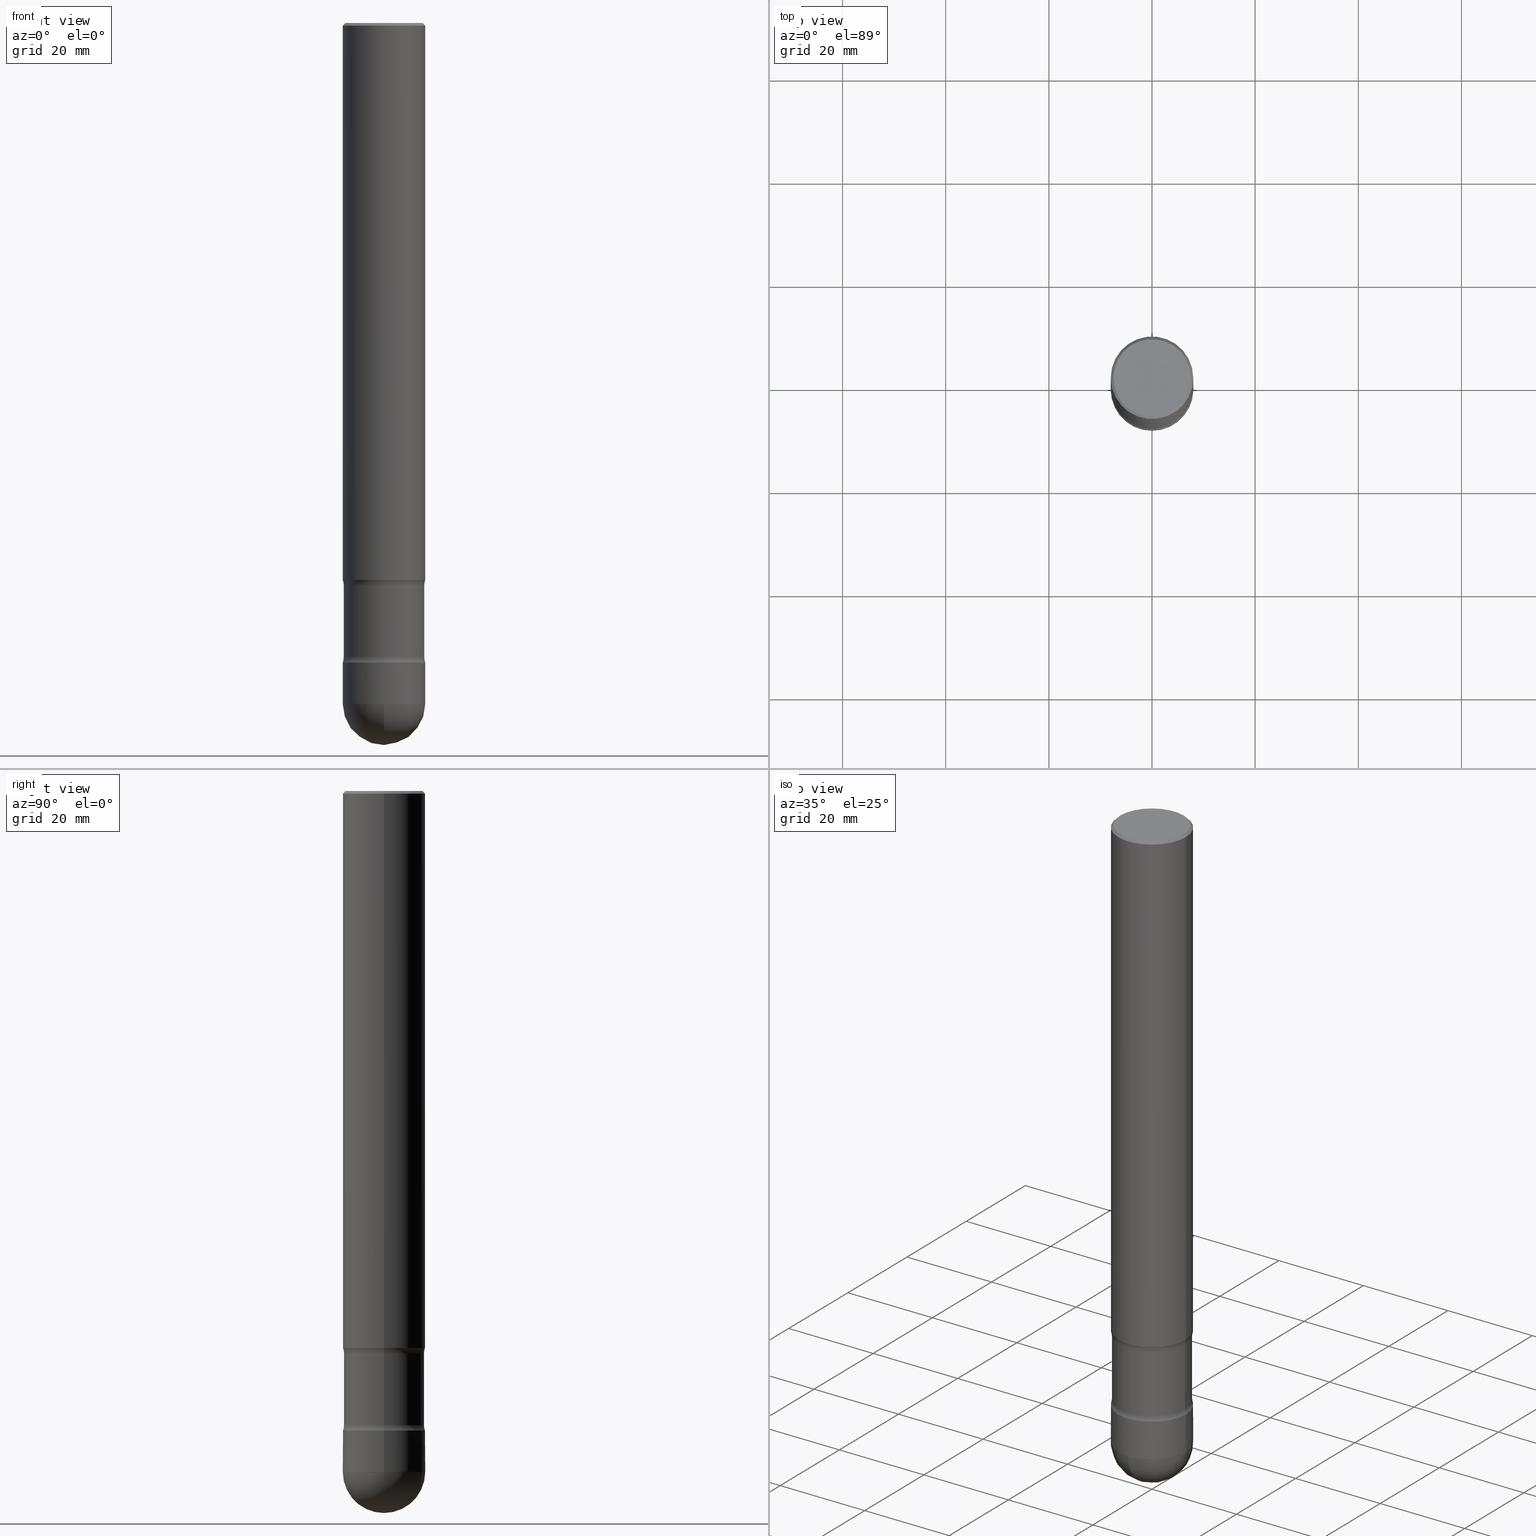
[diagram: canonical four-view strip — front | top / right | iso, engineering-drawing reading convention]
A machine part, canonical four-view strip (front | top / right | iso — engineering-drawing reading convention). The complete STEP part file that produces these views, byte-faithful:
ISO-10303-21;
HEADER;
FILE_DESCRIPTION (( 'STEP AP203' ),
    '1' );
FILE_NAME ('91360.STEP',
    '2024-02-29T19:27:36',
    ( '' ),
    ( '' ),
    'SwSTEP 2.0',
    'SolidWorks 2023',
    '' );
FILE_SCHEMA (( 'CONFIG_CONTROL_DESIGN' ));
ENDSEC;

DATA;
#1 = TOROIDAL_SURFACE ( 'NONE', #277, 0.4325000000000025491, 0.1250000000000033584 ) ;
#2 = AXIS2_PLACEMENT_3D ( 'NONE', #226, #363, #399 ) ;
#3 = DIRECTION ( 'NONE',  ( -1.000000000000000000, 6.982962677686265922E-15, 0.000000000000000000 ) ) ;
#4 = ORIENTED_EDGE ( 'NONE', *, *, #110, .F. ) ;
#5 = ADVANCED_FACE ( 'NONE', ( #369 ), #554, .T. ) ;
#6 = DIRECTION ( 'NONE',  ( -1.000000000000000000, 6.982962677686267499E-15, -4.883557194083112901E-29 ) ) ;
#7 = DIRECTION ( 'NONE',  ( 1.000000000000000000, -6.982962677686271444E-15, 0.000000000000000000 ) ) ;
#8 = FACE_OUTER_BOUND ( 'NONE', #40, .T. ) ;
#9 = AXIS2_PLACEMENT_3D ( 'NONE', #184, #450, #49 ) ;
#10 = CIRCLE ( 'NONE', #543, 0.3149499999999991195 ) ;
#11 = DIRECTION ( 'NONE',  ( 2.445468806185136597E-29, -3.491481338843145583E-15, -1.000000000000000000 ) ) ;
#12 = ORIENTED_EDGE ( 'NONE', *, *, #290, .F. ) ;
#13 = EDGE_CURVE ( 'NONE', #127, #541, #102, .T. ) ;
#14 = DIRECTION ( 'NONE',  ( -1.000000000000000000, 6.982962677686269077E-15, 0.000000000000000000 ) ) ;
#15 = DIRECTION ( 'NONE',  ( 2.445468806185136597E-29, -3.491481338843145583E-15, -1.000000000000000000 ) ) ;
#16 = DATE_TIME_ROLE ( 'classification_date' ) ;
#17 = DIRECTION ( 'NONE',  ( -1.000000000000000000, 6.982962677686267499E-15, 0.000000000000000000 ) ) ;
#18 = LOCAL_TIME ( 14, 27, 36.00000000000000000, #503 ) ;
#19 = CALENDAR_DATE ( 2024, 29, 2 ) ;
#20 = ORIENTED_EDGE ( 'NONE', *, *, #110, .T. ) ;
#21 = ORIENTED_EDGE ( 'NONE', *, *, #13, .F. ) ;
#22 = DIRECTION ( 'NONE',  ( -1.000000000000000000, 6.982962677686263555E-15, 0.000000000000000000 ) ) ;
#23 = EDGE_CURVE ( 'NONE', #342, #513, #372, .T. ) ;
#24 = APPLICATION_PROTOCOL_DEFINITION ( 'international standard', 'config_control_design', 1994, #343 ) ;
#25 = DIRECTION ( 'NONE',  ( -2.445468806185136597E-29, 3.491481338843145583E-15, 1.000000000000000000 ) ) ;
#26 = ORIENTED_EDGE ( 'NONE', *, *, #507, .T. ) ;
#27 =( LENGTH_UNIT ( ) NAMED_UNIT ( * ) SI_UNIT ( $, .METRE. ) );
#28 = CARTESIAN_POINT ( 'NONE',  ( -0.3148176858282792367, -1.484541882947591943E-14, -4.881532314171719733 ) ) ;
#29 = PRODUCT_RELATED_PRODUCT_CATEGORY ( 'detail', '', ( #392 ) ) ;
#30 = AXIS2_PLACEMENT_3D ( 'NONE', #95, #272, #445 ) ;
#31 = CIRCLE ( 'NONE', #222, 0.3144499999999991746 ) ;
#32 = APPROVAL_DATE_TIME ( #424, #261 ) ;
#33 = ORIENTED_EDGE ( 'NONE', *, *, #414, .T. ) ;
#34 = AXIS2_PLACEMENT_3D ( 'NONE', #510, #159, #111 ) ;
#35 = ADVANCED_FACE ( 'NONE', ( #500 ), #109, .T. ) ;
#36 = FACE_OUTER_BOUND ( 'NONE', #501, .T. ) ;
#37 = ORIENTED_EDGE ( 'NONE', *, *, #99, .T. ) ;
#38 = FACE_OUTER_BOUND ( 'NONE', #253, .T. ) ;
#39 = APPROVAL_DATE_TIME ( #348, #337 ) ;
#40 = EDGE_LOOP ( 'NONE', ( #256, #520, #301, #263 ) ) ;
#41 = DIRECTION ( 'NONE',  ( -2.445468806185136597E-29, 3.491481338843145583E-15, 1.000000000000000000 ) ) ;
#42 = ADVANCED_FACE ( 'NONE', ( #84 ), #443, .T. ) ;
#43 = AXIS2_PLACEMENT_3D ( 'NONE', #400, #54, #55 ) ;
#44 = ORIENTED_EDGE ( 'NONE', *, *, #73, .T. ) ;
#45 = EDGE_LOOP ( 'NONE', ( #478, #46, #173, #88 ) ) ;
#46 = ORIENTED_EDGE ( 'NONE', *, *, #176, .T. ) ;
#47 = VERTEX_POINT ( 'NONE', #526 ) ;
#48 = CARTESIAN_POINT ( 'NONE',  ( 1.193853416491521798E-28, -1.704506274809835102E-14, -4.881899999999999906 ) ) ;
#49 = DIRECTION ( 'NONE',  ( -1.000000000000000000, 6.982962677686268288E-15, 0.000000000000000000 ) ) ;
#50 = VECTOR ( 'NONE', #412, 39.37007874015748143 ) ;
#51 = CC_DESIGN_SECURITY_CLASSIFICATION ( #449, ( #87 ) ) ;
#52 = ADVANCED_FACE ( 'NONE', ( #314 ), #486, .T. ) ;
#53 = AXIS2_PLACEMENT_3D ( 'NONE', #494, #103, #278 ) ;
#54 = DIRECTION ( 'NONE',  ( 1.000000000000000000, -6.982962677686265922E-15, 4.883557194083112340E-29 ) ) ;
#55 = DIRECTION ( 'NONE',  ( 6.982962677686266711E-15, 1.000000000000000000, 0.000000000000000000 ) ) ;
#56 = SPHERICAL_SURFACE ( 'NONE', #397, 0.3149499999999997302 ) ;
#57 = CC_DESIGN_PERSON_AND_ORGANIZATION_ASSIGNMENT ( #556, #508, ( #87 ) ) ;
#58 = CARTESIAN_POINT ( 'NONE',  ( 0.3149499999999991195, -1.979416786726996296E-14, -5.196850000000000414 ) ) ;
#59 = ORIENTED_EDGE ( 'NONE', *, *, #68, .T. ) ;
#60 = DIRECTION ( 'NONE',  ( 2.445468806185136597E-29, -3.491481338843145583E-15, -1.000000000000000000 ) ) ;
#61 = ORGANIZATION ( 'UNSPECIFIED', 'UNSPECIFIED', '' ) ;
#62 = CONICAL_SURFACE ( 'NONE', #448, 0.3144499999999991746, 0.7853981633980054999 ) ;
#63 = CARTESIAN_POINT ( 'NONE',  ( 1.193853416491521798E-28, -1.704506274809835102E-14, -4.881899999999999906 ) ) ;
#64 = CARTESIAN_POINT ( 'NONE',  ( 1.276832682828469266E-28, -1.805936528356841694E-14, -5.196849999999999525 ) ) ;
#65 = CARTESIAN_POINT ( 'NONE',  ( -0.3149499999999991195, 2.237854346276429279E-15, -1.549218606675778192E-29 ) ) ;
#66 = CYLINDRICAL_SURFACE ( 'NONE', #353, 0.3074999999999992739 ) ;
#67 = CIRCLE ( 'NONE', #216, 0.2949499999999996014 ) ;
#68 = EDGE_CURVE ( 'NONE', #489, #522, #134, .T. ) ;
#69 = CARTESIAN_POINT ( 'NONE',  ( -0.4324999999999875056, -1.197406595288428538E-14, -4.294508793207993946 ) ) ;
#70 = LINE ( 'NONE', #420, #298 ) ;
#71 = CALENDAR_DATE ( 2024, 29, 2 ) ;
#72 = CYLINDRICAL_SURFACE ( 'NONE', #156, 0.3149499999999997857 ) ;
#73 = EDGE_CURVE ( 'NONE', #183, #265, #427, .T. ) ;
#74 = LINE ( 'NONE', #193, #471 ) ;
#75 = CIRCLE ( 'NONE', #155, 0.3149499999999997302 ) ;
#76 = LINE ( 'NONE', #126, #288 ) ;
#77 = CC_DESIGN_APPROVAL ( #329, ( #205 ) ) ;
#78 = DIRECTION ( 'NONE',  ( 1.000000000000000000, -6.982962677686266711E-15, 4.876176775795935793E-29 ) ) ;
#79 = VERTEX_POINT ( 'NONE', #530 ) ;
#80 = VECTOR ( 'NONE', #466, 39.37007874015748143 ) ;
#81 = DIRECTION ( 'NONE',  ( 2.445468806185136877E-29, -3.491481338843145188E-15, -1.000000000000000000 ) ) ;
#82 = CARTESIAN_POINT ( 'NONE',  ( 1.193853416491521798E-28, -1.704506274809835102E-14, -4.881899999999999906 ) ) ;
#83 = ORIENTED_EDGE ( 'NONE', *, *, #214, .F. ) ;
#84 = FACE_OUTER_BOUND ( 'NONE', #45, .T. ) ;
#85 = EDGE_LOOP ( 'NONE', ( #20, #125, #493, #282, #203 ) ) ;
#86 = ADVANCED_FACE ( 'NONE', ( #136 ), #189, .F. ) ;
#87 = PRODUCT_DEFINITION_FORMATION_WITH_SPECIFIED_SOURCE ( 'ANY', '', #392, .NOT_KNOWN. ) ;
#88 = ORIENTED_EDGE ( 'NONE', *, *, #455, .F. ) ;
#89 = AXIS2_PLACEMENT_3D ( 'NONE', #483, #355, #367 ) ;
#90 = ORIENTED_EDGE ( 'NONE', *, *, #176, .F. ) ;
#91 = EDGE_CURVE ( 'NONE', #274, #436, #209, .T. ) ;
#92 = FACE_OUTER_BOUND ( 'NONE', #422, .T. ) ;
#93 = CARTESIAN_POINT ( 'NONE',  ( 4.890937612370220610E-31, -6.982962677686216421E-17, -0.01999999999999978531 ) ) ;
#94 = CC_DESIGN_APPROVAL ( #337, ( #449 ) ) ;
#95 = CARTESIAN_POINT ( 'NONE',  ( 1.050208729167792447E-28, -1.499419731098350864E-14, -4.294508793207993946 ) ) ;
#96 = ORIENTED_EDGE ( 'NONE', *, *, #391, .F. ) ;
#97 = DIRECTION ( 'NONE',  ( -1.000000000000000000, 6.982962677686266711E-15, -4.883557194083112901E-29 ) ) ;
#98 = CARTESIAN_POINT ( 'NONE',  ( 1.193763500069168247E-28, -1.704377897989035506E-14, -4.881532314171719733 ) ) ;
#99 = EDGE_CURVE ( 'NONE', #79, #452, #425, .T. ) ;
#100 = FACE_OUTER_BOUND ( 'NONE', #114, .T. ) ;
#101 = DIRECTION ( 'NONE',  ( -1.000000000000000000, 6.982962677686267499E-15, -4.883557194083112901E-29 ) ) ;
#102 = CIRCLE ( 'NONE', #435, 0.3149499999999996191 ) ;
#103 = DIRECTION ( 'NONE',  ( 2.445468806185136597E-29, -3.491481338843145583E-15, -1.000000000000000000 ) ) ;
#104 = CIRCLE ( 'NONE', #396, 0.3144499999999991746 ) ;
#105 = PERSON_AND_ORGANIZATION ( #352, #61 ) ;
#106 = ORIENTED_EDGE ( 'NONE', *, *, #68, .F. ) ;
#107 = DIRECTION ( 'NONE',  ( 1.000000000000000000, -6.982962677686271444E-15, 0.000000000000000000 ) ) ;
#108 = APPROVAL_STATUS ( 'not_yet_approved' ) ;
#109 = CYLINDRICAL_SURFACE ( 'NONE', #405, 0.3149499999999991195 ) ;
#110 = EDGE_CURVE ( 'NONE', #130, #199, #249, .T. ) ;
#111 = DIRECTION ( 'NONE',  ( 1.000000000000000000, -6.982962677686265133E-15, 0.000000000000000000 ) ) ;
#112 = EDGE_LOOP ( 'NONE', ( #360, #370, #481, #4 ) ) ;
#113 = PERSON_AND_ORGANIZATION ( #352, #61 ) ;
#114 = EDGE_LOOP ( 'NONE', ( #59, #528, #147, #326 ) ) ;
#115 = CARTESIAN_POINT ( 'NONE',  ( -0.3149499999999996191, 2.129454468560424601E-15, -0.01999999999999978531 ) ) ;
#116 = AXIS2_PLACEMENT_3D ( 'NONE', #225, #536, #3 ) ;
#117 = CIRCLE ( 'NONE', #262, 0.3074999999999993294 ) ;
#118 = CALENDAR_DATE ( 2024, 29, 2 ) ;
#119 = CARTESIAN_POINT ( 'NONE',  ( 1.193853416491521798E-28, -1.704506274809835102E-14, -4.881899999999999906 ) ) ;
#120 = ADVANCED_FACE ( 'NONE', ( #92 ), #56, .T. ) ;
#121 = CALENDAR_DATE ( 2024, 29, 2 ) ;
#122 = DIRECTION ( 'NONE',  ( 1.000000000000000000, -6.982962677686270655E-15, 0.000000000000000000 ) ) ;
#123 = EDGE_LOOP ( 'NONE', ( #561, #270, #83, #419 ) ) ;
#124 = DIRECTION ( 'NONE',  ( -2.438088387897960049E-29, 3.491481338843145188E-15, 1.000000000000000000 ) ) ;
#125 = ORIENTED_EDGE ( 'NONE', *, *, #275, .T. ) ;
#126 = CARTESIAN_POINT ( 'NONE',  ( 0.3074999999999992739, -1.915466588241308928E-14, -4.881899999999999906 ) ) ;
#127 = VERTEX_POINT ( 'NONE', #359 ) ;
#128 = ADVANCED_FACE ( 'NONE', ( #403 ), #221, .F. ) ;
#129 = CARTESIAN_POINT ( 'NONE',  ( 0.000000000000000000, 0.000000000000000000, 0.000000000000000000 ) ) ;
#130 = VERTEX_POINT ( 'NONE', #317 ) ;
#131 = VERTEX_POINT ( 'NONE', #320 ) ;
#132 = VECTOR ( 'NONE', #154, 39.37007874015748143 ) ;
#133 = LOCAL_TIME ( 14, 27, 36.00000000000000000, #410 ) ;
#134 = CIRCLE ( 'NONE', #252, 0.2949499999999996014 ) ;
#135 = EDGE_CURVE ( 'NONE', #513, #436, #224, .T. ) ;
#136 = FACE_OUTER_BOUND ( 'NONE', #564, .T. ) ;
#137 = CARTESIAN_POINT ( 'NONE',  ( -0.3149500000000000077, -1.264649455742376812E-14, -4.252000000000000668 ) ) ;
#138 = DIRECTION ( 'NONE',  ( -1.000000000000000000, 6.982962677686264344E-15, 0.000000000000000000 ) ) ;
#139 = AXIS2_PLACEMENT_3D ( 'NONE', #398, #276, #319 ) ;
#140 = EDGE_CURVE ( 'NONE', #47, #516, #165, .T. ) ;
#141 = DIRECTION ( 'NONE',  ( 1.000000000000000000, -6.982962677686266711E-15, 4.876176775795935793E-29 ) ) ;
#142 = CARTESIAN_POINT ( 'NONE',  ( -0.2949499999999996014, 2.059624841783561697E-15, -1.438228340021009396E-29 ) ) ;
#143 = EDGE_LOOP ( 'NONE', ( #532, #504, #366, #306 ) ) ;
#144 = CARTESIAN_POINT ( 'NONE',  ( 0.000000000000000000, 0.000000000000000000, 0.000000000000000000 ) ) ;
#145 = ORIENTED_EDGE ( 'NONE', *, *, #23, .F. ) ;
#146 = DIRECTION ( 'NONE',  ( 2.445468806185136597E-29, -3.491481338843145583E-15, -1.000000000000000000 ) ) ;
#147 = ORIENTED_EDGE ( 'NONE', *, *, #565, .F. ) ;
#148 = DIRECTION ( 'NONE',  ( -2.445468806185136597E-29, 3.491481338843145583E-15, 1.000000000000000000 ) ) ;
#149 = CC_DESIGN_DATE_AND_TIME_ASSIGNMENT ( #550, #16, ( #449 ) ) ;
#150 = CYLINDRICAL_SURFACE ( 'NONE', #434, 0.3074999999999992739 ) ;
#151 = DIRECTION ( 'NONE',  ( -1.000000000000000000, 6.982962677686265922E-15, 0.000000000000000000 ) ) ;
#152 = AXIS2_PLACEMENT_3D ( 'NONE', #285, #15, #22 ) ;
#153 = ORIENTED_EDGE ( 'NONE', *, *, #534, .F. ) ;
#154 = DIRECTION ( 'NONE',  ( 2.445468806185136877E-29, -3.491481338843145188E-15, -1.000000000000000000 ) ) ;
#155 = AXIS2_PLACEMENT_3D ( 'NONE', #331, #291, #305 ) ;
#156 = AXIS2_PLACEMENT_3D ( 'NONE', #208, #409, #383 ) ;
#157 = EDGE_CURVE ( 'NONE', #183, #47, #279, .T. ) ;
#158 = DIRECTION ( 'NONE',  ( 1.000000000000000000, 0.000000000000000000, 0.000000000000000000 ) ) ;
#159 = DIRECTION ( 'NONE',  ( -2.445468806185136597E-29, 3.491481338843145583E-15, 1.000000000000000000 ) ) ;
#160 = LENGTH_MEASURE_WITH_UNIT ( LENGTH_MEASURE( 0.02539999999999999897 ), #27 );
#161 = CARTESIAN_POINT ( 'NONE',  ( 1.270873456542322947E-28, -1.814470479576700463E-14, -5.196850000000000414 ) ) ;
#162 =( NAMED_UNIT ( * ) SI_UNIT ( $, .STERADIAN. ) SOLID_ANGLE_UNIT ( ) );
#163 = CARTESIAN_POINT ( 'NONE',  ( 0.3144499999999991746, -1.924149724620079113E-14, -4.881899999999999906 ) ) ;
#164 = CC_DESIGN_PERSON_AND_ORGANIZATION_ASSIGNMENT ( #210, #200, ( #87 ) ) ;
#165 = CIRCLE ( 'NONE', #480, 0.3074999999999992739 ) ;
#166 = DIRECTION ( 'NONE',  ( 0.000000000000000000, 0.000000000000000000, 1.000000000000000000 ) ) ;
#167 = DIRECTION ( 'NONE',  ( -1.000000000000000000, 6.982962677686269077E-15, 0.000000000000000000 ) ) ;
#168 = EDGE_LOOP ( 'NONE', ( #96, #266, #296, #393 ) ) ;
#169 = VERTEX_POINT ( 'NONE', #163 ) ;
#170 = ORIENTED_EDGE ( 'NONE', *, *, #269, .F. ) ;
#171 = EDGE_CURVE ( 'NONE', #265, #183, #394, .T. ) ;
#172 = LINE ( 'NONE', #212, #361 ) ;
#173 = ORIENTED_EDGE ( 'NONE', *, *, #135, .F. ) ;
#174 = ORIENTED_EDGE ( 'NONE', *, *, #235, .T. ) ;
#175 = DIRECTION ( 'NONE',  ( -1.000000000000000000, 6.982962677686268288E-15, 0.000000000000000000 ) ) ;
#176 = EDGE_CURVE ( 'NONE', #127, #436, #206, .T. ) ;
#177 = VECTOR ( 'NONE', #243, 39.37007874015748143 ) ;
#178 = LOCAL_TIME ( 14, 27, 36.00000000000000000, #453 ) ;
#179 = CIRCLE ( 'NONE', #152, 0.3149500000000000077 ) ;
#180 = DIRECTION ( 'NONE',  ( 2.445468806185136597E-29, -3.491481338843145583E-15, -1.000000000000000000 ) ) ;
#181 = LINE ( 'NONE', #234, #552 ) ;
#182 = CARTESIAN_POINT ( 'NONE',  ( 1.270873456542322947E-28, -1.814470479576700463E-14, -5.196850000000000414 ) ) ;
#183 = VERTEX_POINT ( 'NONE', #289 ) ;
#184 = CARTESIAN_POINT ( 'NONE',  ( 1.050208729167792447E-28, -1.499419731098350864E-14, -4.294508793207993946 ) ) ;
#185 = ORIENTED_EDGE ( 'NONE', *, *, #254, .T. ) ;
#186 = CARTESIAN_POINT ( 'NONE',  ( 4.890937612370220610E-31, -6.982962677686216421E-17, -0.01999999999999978531 ) ) ;
#187 = CIRCLE ( 'NONE', #460, 0.3149499999999996191 ) ;
#188 = CC_DESIGN_DATE_AND_TIME_ASSIGNMENT ( #286, #511, ( #205 ) ) ;
#189 = TOROIDAL_SURFACE ( 'NONE', #30, 0.4324999999999875056, 0.1249999999999882178 ) ;
#190 = FACE_OUTER_BOUND ( 'NONE', #123, .T. ) ;
#191 = EDGE_LOOP ( 'NONE', ( #26, #33 ) ) ;
#192 = DIRECTION ( 'NONE',  ( 2.445468806185136597E-29, -3.491481338843145583E-15, -1.000000000000000000 ) ) ;
#193 = CARTESIAN_POINT ( 'NONE',  ( -0.3074999999999992739, -1.489780172470982748E-14, -4.881899999999999906 ) ) ;
#194 = EDGE_CURVE ( 'NONE', #436, #513, #179, .T. ) ;
#195 = PERSON_AND_ORGANIZATION ( #352, #61 ) ;
#196 = AXIS2_PLACEMENT_3D ( 'NONE', #186, #223, #406 ) ;
#197 = CARTESIAN_POINT ( 'NONE',  ( -0.3149499999999991195, -1.535702942565624815E-14, -5.196850000000000414 ) ) ;
#198 = CONICAL_SURFACE ( 'NONE', #116, 0.3149499999999996191, 0.7853981633974533860 ) ;
#199 = VERTEX_POINT ( 'NONE', #197 ) ;
#200 = PERSON_AND_ORGANIZATION_ROLE ( 'creator' ) ;
#201 = CARTESIAN_POINT ( 'NONE',  ( 1.193853416491521798E-28, -1.704506274809835102E-14, -4.881899999999999906 ) ) ;
#202 = DIRECTION ( 'NONE',  ( 2.445468806185136597E-29, -3.491481338843145583E-15, -1.000000000000000000 ) ) ;
#203 = ORIENTED_EDGE ( 'NONE', *, *, #227, .T. ) ;
#204 = PERSON_AND_ORGANIZATION_ROLE ( 'classification_officer' ) ;
#205 = PRODUCT_DEFINITION ( 'UNKNOWN', '', #87, #350 ) ;
#206 = LINE ( 'NONE', #371, #132 ) ;
#207 = ORIENTED_EDGE ( 'NONE', *, *, #310, .F. ) ;
#208 = CARTESIAN_POINT ( 'NONE',  ( 1.193853416491521798E-28, -1.704506274809835102E-14, -4.881899999999999906 ) ) ;
#209 = CIRCLE ( 'NONE', #89, 0.1249999999999882178 ) ;
#210 = PERSON_AND_ORGANIZATION ( #352, #61 ) ;
#211 = VERTEX_POINT ( 'NONE', #324 ) ;
#212 = CARTESIAN_POINT ( 'NONE',  ( 0.3144499999999991746, -1.924085536209679157E-14, -4.881899999999999906 ) ) ;
#213 = PLANE ( 'NONE',  #525 ) ;
#214 = EDGE_CURVE ( 'NONE', #516, #47, #308, .T. ) ;
#215 = ORIENTED_EDGE ( 'NONE', *, *, #395, .T. ) ;
#216 = AXIS2_PLACEMENT_3D ( 'NONE', #129, #302, #558 ) ;
#217 = ORIENTED_EDGE ( 'NONE', *, *, #140, .T. ) ;
#218 = ORIENTED_EDGE ( 'NONE', *, *, #384, .T. ) ;
#219 = EDGE_CURVE ( 'NONE', #274, #342, #117, .T. ) ;
#220 = MANIFOLD_SOLID_BREP ( 'Body-Move/Copy2[1]', #442 ) ;
#221 = TOROIDAL_SURFACE ( 'NONE', #385, 0.4324999999999875056, 0.1249999999999882178 ) ;
#222 = AXIS2_PLACEMENT_3D ( 'NONE', #228, #11, #402 ) ;
#223 = DIRECTION ( 'NONE',  ( 2.445468806185136597E-29, -3.491481338843145583E-15, -1.000000000000000000 ) ) ;
#224 = CIRCLE ( 'NONE', #53, 0.3149500000000000077 ) ;
#225 = CARTESIAN_POINT ( 'NONE',  ( 4.890937612370220610E-31, -6.982962677686216421E-17, -0.01999999999999978531 ) ) ;
#226 = CARTESIAN_POINT ( 'NONE',  ( 1.270873456542322947E-28, -1.814470479576700463E-14, -5.196850000000000414 ) ) ;
#227 = EDGE_CURVE ( 'NONE', #452, #130, #10, .T. ) ;
#228 = CARTESIAN_POINT ( 'NONE',  ( 1.193853416491521798E-28, -1.704506274809835102E-14, -4.881899999999999906 ) ) ;
#229 = DIRECTION ( 'NONE',  ( 6.982962677686266711E-15, 1.000000000000000000, -3.469564049740295925E-15 ) ) ;
#230 = DIRECTION ( 'NONE',  ( 2.445468806185136597E-29, -3.491481338843145583E-15, -1.000000000000000000 ) ) ;
#231 = CIRCLE ( 'NONE', #312, 0.3149499999999991195 ) ;
#232 = DIRECTION ( 'NONE',  ( -1.000000000000000000, 6.982962677686266711E-15, -4.883557194083112901E-29 ) ) ;
#233 = CLOSED_SHELL ( 'NONE', ( #5, #497, #559, #86, #42, #474, #524, #304, #128, #297, #539, #242, #517, #362 ) ) ;
#234 = CARTESIAN_POINT ( 'NONE',  ( -0.3144499999999991746, -1.481076111550072303E-14, -4.881899999999999906 ) ) ;
#235 = EDGE_CURVE ( 'NONE', #489, #541, #330, .T. ) ;
#236 = DIRECTION ( 'NONE',  ( -2.445468806185136597E-29, 3.491481338843145583E-15, 1.000000000000000000 ) ) ;
#237 = CARTESIAN_POINT ( 'NONE',  ( 4.890937612370220610E-31, -6.982962677686216421E-17, -0.01999999999999978531 ) ) ;
#238 = EDGE_LOOP ( 'NONE', ( #364, #429, #37, #185, #12 ) ) ;
#239 = FACE_OUTER_BOUND ( 'NONE', #168, .T. ) ;
#240 = COORDINATED_UNIVERSAL_TIME_OFFSET ( 5, 0, .BEHIND. ) ;
#241 = DIRECTION ( 'NONE',  ( 2.445468806185136597E-29, -3.491481338843145583E-15, -1.000000000000000000 ) ) ;
#242 = ADVANCED_FACE ( 'NONE', ( #506 ), #62, .T. ) ;
#243 = DIRECTION ( 'NONE',  ( -0.7071067811865511255, 2.468850131082294531E-15, -0.7071067811865439090 ) ) ;
#244 = APPLICATION_CONTEXT ( 'configuration controlled 3d designs of mechanical parts and assemblies' ) ;
#245 = MECHANICAL_CONTEXT ( 'NONE', #343, 'mechanical' ) ;
#246 = CARTESIAN_POINT ( 'NONE',  ( 0.3074999999999993294, -1.705514647122872669E-14, -4.294508793207993946 ) ) ;
#247 = ADVANCED_BREP_SHAPE_REPRESENTATION ( '91360', ( #220, #407, #260 ), #299 ) ;
#248 = CALENDAR_DATE ( 2024, 29, 2 ) ;
#249 = CIRCLE ( 'NONE', #468, 0.3149499999999991195 ) ;
#250 = LOCAL_TIME ( 14, 27, 36.00000000000000000, #240 ) ;
#251 = CARTESIAN_POINT ( 'NONE',  ( -0.3074999999999993294, -1.284693628759498668E-14, -4.294508793207993946 ) ) ;
#252 = AXIS2_PLACEMENT_3D ( 'NONE', #441, #180, #447 ) ;
#253 = EDGE_LOOP ( 'NONE', ( #218, #316 ) ) ;
#254 = EDGE_CURVE ( 'NONE', #452, #211, #70, .T. ) ;
#255 = PLANE ( 'NONE',  #535 ) ;
#256 = ORIENTED_EDGE ( 'NONE', *, *, #157, .F. ) ;
#257 = ORIENTED_EDGE ( 'NONE', *, *, #482, .T. ) ;
#258 = ORIENTED_EDGE ( 'NONE', *, *, #23, .T. ) ;
#259 = DIRECTION ( 'NONE',  ( 2.438088387897960049E-29, -3.491481338843145188E-15, -1.000000000000000000 ) ) ;
#260 = AXIS2_PLACEMENT_3D ( 'NONE', #332, #166, #158 ) ;
#261 = APPROVAL ( #373, 'UNSPECIFIED' ) ;
#262 = AXIS2_PLACEMENT_3D ( 'NONE', #339, #202, #417 ) ;
#263 = ORIENTED_EDGE ( 'NONE', *, *, #214, .T. ) ;
#264 = ORIENTED_EDGE ( 'NONE', *, *, #219, .F. ) ;
#265 = VERTEX_POINT ( 'NONE', #28 ) ;
#266 = ORIENTED_EDGE ( 'NONE', *, *, #219, .T. ) ;
#267 = FACE_OUTER_BOUND ( 'NONE', #191, .T. ) ;
#268 = DIRECTION ( 'NONE',  ( -1.000000000000000000, 6.982962677686267499E-15, 0.000000000000000000 ) ) ;
#269 = EDGE_CURVE ( 'NONE', #265, #516, #351, .T. ) ;
#270 = ORIENTED_EDGE ( 'NONE', *, *, #391, .T. ) ;
#271 = CARTESIAN_POINT ( 'NONE',  ( 1.276832682828469266E-28, -1.805936528356841694E-14, -5.196849999999999525 ) ) ;
#272 = DIRECTION ( 'NONE',  ( 2.445468806185136597E-29, -3.491481338843145583E-15, -1.000000000000000000 ) ) ;
#273 = CARTESIAN_POINT ( 'NONE',  ( -0.3144499999999991746, -1.480881294892509457E-14, -4.881899999999999906 ) ) ;
#274 = VERTEX_POINT ( 'NONE', #246 ) ;
#275 = EDGE_CURVE ( 'NONE', #199, #334, #456, .T. ) ;
#276 = DIRECTION ( 'NONE',  ( 2.438088387897960049E-29, -3.491481338843145188E-15, -1.000000000000000000 ) ) ;
#277 = AXIS2_PLACEMENT_3D ( 'NONE', #531, #230, #6 ) ;
#278 = DIRECTION ( 'NONE',  ( -1.000000000000000000, 6.982962677686263555E-15, 0.000000000000000000 ) ) ;
#279 = CIRCLE ( 'NONE', #300, 0.1250000000000033584 ) ;
#280 = APPROVAL_ROLE ( '' ) ;
#281 = CARTESIAN_POINT ( 'NONE',  ( 0.000000000000000000, 0.000000000000000000, 0.000000000000000000 ) ) ;
#282 = ORIENTED_EDGE ( 'NONE', *, *, #254, .F. ) ;
#283 = DIRECTION ( 'NONE',  ( 1.000000000000000000, -6.982962677686261189E-15, 0.000000000000000000 ) ) ;
#284 = SECURITY_CLASSIFICATION_LEVEL ( 'unclassified' ) ;
#285 = CARTESIAN_POINT ( 'NONE',  ( 1.039813336389920174E-28, -1.484577865276105642E-14, -4.252000000000000668 ) ) ;
#286 = DATE_AND_TIME ( #248, #18 ) ;
#287 = EDGE_LOOP ( 'NONE', ( #563, #387, #217, #170 ) ) ;
#288 = VECTOR ( 'NONE', #345, 39.37007874015748143 ) ;
#289 = CARTESIAN_POINT ( 'NONE',  ( 0.3148176858282792367, -1.920358508317833106E-14, -4.881532314171719733 ) ) ;
#290 = EDGE_CURVE ( 'NONE', #334, #211, #499, .T. ) ;
#291 = DIRECTION ( 'NONE',  ( -1.000000000000000000, 7.105427357601001070E-15, -4.926315508542082329E-29 ) ) ;
#292 = APPROVAL_STATUS ( 'not_yet_approved' ) ;
#293 = FACE_OUTER_BOUND ( 'NONE', #431, .T. ) ;
#294 = PERSON_AND_ORGANIZATION_ROLE ( 'design_owner' ) ;
#295 = CARTESIAN_POINT ( 'NONE',  ( 0.3149499999999996191, -2.230543471175003505E-15, -0.01999999999999978531 ) ) ;
#296 = ORIENTED_EDGE ( 'NONE', *, *, #318, .T. ) ;
#297 = ADVANCED_FACE ( 'NONE', ( #239 ), #66, .T. ) ;
#298 = VECTOR ( 'NONE', #327, 39.37007874015748143 ) ;
#299 =( GEOMETRIC_REPRESENTATION_CONTEXT ( 3 ) GLOBAL_UNCERTAINTY_ASSIGNED_CONTEXT ( ( #438 ) ) GLOBAL_UNIT_ASSIGNED_CONTEXT ( ( #548, #380, #162 ) ) REPRESENTATION_CONTEXT ( 'NONE', 'WORKASPACE' ) );
#300 = AXIS2_PLACEMENT_3D ( 'NONE', #551, #555, #379 ) ;
#301 = ORIENTED_EDGE ( 'NONE', *, *, #269, .T. ) ;
#302 = DIRECTION ( 'NONE',  ( 2.445468806185136597E-29, -3.491481338843145583E-15, -1.000000000000000000 ) ) ;
#303 = ORIENTED_EDGE ( 'NONE', *, *, #194, .F. ) ;
#304 = ADVANCED_FACE ( 'NONE', ( #293 ), #72, .T. ) ;
#305 = DIRECTION ( 'NONE',  ( -7.105427357601000281E-15, -1.000000000000000000, 0.000000000000000000 ) ) ;
#306 = ORIENTED_EDGE ( 'NONE', *, *, #377, .F. ) ;
#307 = AXIS2_PLACEMENT_3D ( 'NONE', #514, #41, #428 ) ;
#308 = CIRCLE ( 'NONE', #451, 0.3074999999999992739 ) ;
#309 = CARTESIAN_POINT ( 'NONE',  ( -0.3149499999999997857, -1.484577865276106273E-14, -4.881899999999999906 ) ) ;
#310 = EDGE_CURVE ( 'NONE', #522, #127, #512, .T. ) ;
#311 = DIRECTION ( 'NONE',  ( 2.445468806185136597E-29, -3.491481338843145583E-15, -1.000000000000000000 ) ) ;
#312 = AXIS2_PLACEMENT_3D ( 'NONE', #82, #430, #521 ) ;
#313 = DIRECTION ( 'NONE',  ( -0.7071067811869414799, 7.493145998871777265E-15, 0.7071067811861535546 ) ) ;
#314 = FACE_OUTER_BOUND ( 'NONE', #85, .T. ) ;
#315 = DIRECTION ( 'NONE',  ( 2.445468806185136877E-29, -3.491481338843145188E-15, -1.000000000000000000 ) ) ;
#316 = ORIENTED_EDGE ( 'NONE', *, *, #290, .T. ) ;
#317 = CARTESIAN_POINT ( 'NONE',  ( 2.199284095337412933E-15, 0.3149499999999813005, -5.196850000000001302 ) ) ;
#318 = EDGE_CURVE ( 'NONE', #342, #516, #74, .T. ) ;
#319 = DIRECTION ( 'NONE',  ( -1.000000000000000000, 6.982962677686265922E-15, -4.876176775795935793E-29 ) ) ;
#320 = CARTESIAN_POINT ( 'NONE',  ( 1.355199395993155360E-28, -1.913972220576749197E-14, -5.511799999999999145 ) ) ;
#321 = LINE ( 'NONE', #309, #470 ) ;
#322 = DIRECTION ( 'NONE',  ( -6.982962677686266711E-15, -1.000000000000000000, 3.491481338843145583E-15 ) ) ;
#323 = AXIS2_PLACEMENT_3D ( 'NONE', #485, #492, #101 ) ;
#324 = CARTESIAN_POINT ( 'NONE',  ( 0.3149499999999991195, -1.924434684343563300E-14, -4.881899999999999906 ) ) ;
#325 = AXIS2_PLACEMENT_3D ( 'NONE', #201, #540, #328 ) ;
#326 = ORIENTED_EDGE ( 'NONE', *, *, #235, .F. ) ;
#327 = DIRECTION ( 'NONE',  ( -2.445468806185136877E-29, 3.491481338843145188E-15, 1.000000000000000000 ) ) ;
#328 = DIRECTION ( 'NONE',  ( 1.000000000000000000, -6.982962677686270655E-15, 0.000000000000000000 ) ) ;
#329 = APPROVAL ( #292, 'UNSPECIFIED' ) ;
#330 = LINE ( 'NONE', #115, #177 ) ;
#331 = CARTESIAN_POINT ( 'NONE',  ( 1.276832682828469266E-28, -1.805936528356841694E-14, -5.196849999999999525 ) ) ;
#332 = CARTESIAN_POINT ( 'NONE',  ( 0.000000000000000000, 0.000000000000000000, 0.000000000000000000 ) ) ;
#333 = APPROVAL_PERSON_ORGANIZATION ( #113, #329, #378 ) ;
#334 = VERTEX_POINT ( 'NONE', #523 ) ;
#335 = CARTESIAN_POINT ( 'NONE',  ( 1.183458023713649301E-28, -1.689664408987589879E-14, -4.839391206792005740 ) ) ;
#336 = AXIS2_PLACEMENT_3D ( 'NONE', #547, #375, #283 ) ;
#337 = APPROVAL ( #108, 'UNSPECIFIED' ) ;
#338 = APPROVAL_DATE_TIME ( #553, #329 ) ;
#339 = CARTESIAN_POINT ( 'NONE',  ( 1.050208729167792447E-28, -1.499419731098350864E-14, -4.294508793207993946 ) ) ;
#340 = EDGE_CURVE ( 'NONE', #131, #79, #75, .T. ) ;
#341 = PRODUCT_DEFINITION_SHAPE ( 'NONE', 'NONE',  #205 ) ;
#342 = VERTEX_POINT ( 'NONE', #251 ) ;
#343 = APPLICATION_CONTEXT ( 'configuration controlled 3d designs of mechanical parts and assemblies' ) ;
#344 = APPROVAL_PERSON_ORGANIZATION ( #418, #261, #280 ) ;
#345 = DIRECTION ( 'NONE',  ( 2.445468806185136877E-29, -3.491481338843145188E-15, -1.000000000000000000 ) ) ;
#346 = ORIENTED_EDGE ( 'NONE', *, *, #395, .F. ) ;
#347 = DIRECTION ( 'NONE',  ( 1.000000000000000000, -6.982962677686265922E-15, 4.876176775795935793E-29 ) ) ;
#348 = DATE_AND_TIME ( #19, #250 ) ;
#349 = ORIENTED_EDGE ( 'NONE', *, *, #135, .T. ) ;
#350 = DESIGN_CONTEXT ( 'detailed design', #244, 'design' ) ;
#351 = CIRCLE ( 'NONE', #336, 0.1250000000000033584 ) ;
#352 = PERSON ( 'UNSPECIFIED', 'UNSPECIFIED', 'UNSPECIFIED', ('UNSPECIFIED'), ('UNSPECIFIED'), ('UNSPECIFIED') ) ;
#353 = AXIS2_PLACEMENT_3D ( 'NONE', #119, #423, #464 ) ;
#354 = ORIENTED_EDGE ( 'NONE', *, *, #194, .T. ) ;
#355 = DIRECTION ( 'NONE',  ( 6.860497997771531562E-15, 1.000000000000000000, -3.491481338843145583E-15 ) ) ;
#356 = EDGE_CURVE ( 'NONE', #199, #79, #404, .T. ) ;
#357 = FACE_OUTER_BOUND ( 'NONE', #112, .T. ) ;
#358 = CARTESIAN_POINT ( 'NONE',  ( -0.3149499999999996191, 2.129454468560424601E-15, -0.01999999999999978531 ) ) ;
#359 = CARTESIAN_POINT ( 'NONE',  ( 0.3149499999999996191, -2.230543471175003505E-15, -0.01999999999999978531 ) ) ;
#360 = ORIENTED_EDGE ( 'NONE', *, *, #482, .F. ) ;
#361 = VECTOR ( 'NONE', #472, 39.37007874015748143 ) ;
#362 = ADVANCED_FACE ( 'NONE', ( #36 ), #255, .T. ) ;
#363 = DIRECTION ( 'NONE',  ( -2.445468806185136597E-29, 3.491481338843145583E-15, 1.000000000000000000 ) ) ;
#364 = ORIENTED_EDGE ( 'NONE', *, *, #275, .F. ) ;
#365 = SPHERICAL_SURFACE ( 'NONE', #515, 0.3149499999999997302 ) ;
#366 = ORIENTED_EDGE ( 'NONE', *, *, #171, .T. ) ;
#367 = DIRECTION ( 'NONE',  ( -1.000000000000000000, 6.860497997771524463E-15, 0.000000000000000000 ) ) ;
#368 = DIRECTION ( 'NONE',  ( -1.000000000000000000, 6.982962677686265922E-15, 0.000000000000000000 ) ) ;
#369 = FACE_OUTER_BOUND ( 'NONE', #143, .T. ) ;
#370 = ORIENTED_EDGE ( 'NONE', *, *, #340, .T. ) ;
#371 = CARTESIAN_POINT ( 'NONE',  ( 0.3149499999999997857, -1.920577659249649162E-14, -4.881899999999999906 ) ) ;
#372 = CIRCLE ( 'NONE', #495, 0.1249999999999882178 ) ;
#373 = APPROVAL_STATUS ( 'not_yet_approved' ) ;
#374 = DIRECTION ( 'NONE',  ( 1.000000000000000000, -6.982962677686268288E-15, 0.000000000000000000 ) ) ;
#375 = DIRECTION ( 'NONE',  ( -6.982962677686266711E-15, -1.000000000000000000, 3.491481338843145583E-15 ) ) ;
#376 = AXIS2_PLACEMENT_3D ( 'NONE', #505, #549, #17 ) ;
#377 = EDGE_CURVE ( 'NONE', #169, #183, #172, .T. ) ;
#378 = APPROVAL_ROLE ( '' ) ;
#379 = DIRECTION ( 'NONE',  ( -1.000000000000000000, 6.860497997771531562E-15, 0.000000000000000000 ) ) ;
#380 =( NAMED_UNIT ( * ) PLANE_ANGLE_UNIT ( ) SI_UNIT ( $, .RADIAN. ) );
#381 = DIRECTION ( 'NONE',  ( -2.445468806185136597E-29, 3.491481338843145583E-15, 1.000000000000000000 ) ) ;
#382 = COORDINATED_UNIVERSAL_TIME_OFFSET ( 5, 0, .BEHIND. ) ;
#383 = DIRECTION ( 'NONE',  ( -1.000000000000000000, 6.982962677686268288E-15, 0.000000000000000000 ) ) ;
#384 = EDGE_CURVE ( 'NONE', #211, #334, #231, .T. ) ;
#385 = AXIS2_PLACEMENT_3D ( 'NONE', #491, #60, #538 ) ;
#386 = PERSON_AND_ORGANIZATION ( #352, #61 ) ;
#387 = ORIENTED_EDGE ( 'NONE', *, *, #157, .T. ) ;
#388 = ORIENTED_EDGE ( 'NONE', *, *, #377, .T. ) ;
#389 = CONICAL_SURFACE ( 'NONE', #196, 0.3149499999999996191, 0.7853981633974533860 ) ;
#390 = ORIENTED_EDGE ( 'NONE', *, *, #99, .F. ) ;
#391 = EDGE_CURVE ( 'NONE', #274, #47, #76, .T. ) ;
#392 = PRODUCT ( '91360', '91360', '', ( #245 ) ) ;
#393 = ORIENTED_EDGE ( 'NONE', *, *, #140, .F. ) ;
#394 = CIRCLE ( 'NONE', #376, 0.3148176858282792367 ) ;
#395 = EDGE_CURVE ( 'NONE', #522, #489, #67, .T. ) ;
#396 = AXIS2_PLACEMENT_3D ( 'NONE', #477, #487, #138 ) ;
#397 = AXIS2_PLACEMENT_3D ( 'NONE', #64, #232, #229 ) ;
#398 = CARTESIAN_POINT ( 'NONE',  ( 2.195792613998559671E-15, 0.3144499999999820772, -4.881900000000000794 ) ) ;
#399 = DIRECTION ( 'NONE',  ( 1.000000000000000000, -6.982962677686271444E-15, 0.000000000000000000 ) ) ;
#400 = CARTESIAN_POINT ( 'NONE',  ( 1.276832682828469266E-28, -1.805936528356841694E-14, -5.196849999999999525 ) ) ;
#401 = ADVANCED_FACE ( 'NONE', ( #38 ), #213, .F. ) ;
#402 = DIRECTION ( 'NONE',  ( -1.000000000000000000, 6.982962677686264344E-15, 0.000000000000000000 ) ) ;
#403 = FACE_OUTER_BOUND ( 'NONE', #416, .T. ) ;
#404 = CIRCLE ( 'NONE', #307, 0.3149499999999991195 ) ;
#405 = AXIS2_PLACEMENT_3D ( 'NONE', #281, #454, #78 ) ;
#406 = DIRECTION ( 'NONE',  ( -1.000000000000000000, 6.982962677686265922E-15, 0.000000000000000000 ) ) ;
#407 = MANIFOLD_SOLID_BREP ( 'Body-Move/Copy2[2]', #233 ) ;
#408 = ORIENTED_EDGE ( 'NONE', *, *, #91, .T. ) ;
#409 = DIRECTION ( 'NONE',  ( 2.445468806185136597E-29, -3.491481338843145583E-15, -1.000000000000000000 ) ) ;
#410 = COORDINATED_UNIVERSAL_TIME_OFFSET ( 5, 0, .BEHIND. ) ;
#411 = DIRECTION ( 'NONE',  ( 2.445468806185136597E-29, -3.491481338843145583E-15, -1.000000000000000000 ) ) ;
#412 = DIRECTION ( 'NONE',  ( -2.445468806185136877E-29, 3.491481338843145188E-15, 1.000000000000000000 ) ) ;
#413 = DIMENSIONAL_EXPONENTS ( 1.000000000000000000, 0.000000000000000000, 0.000000000000000000, 0.000000000000000000, 0.000000000000000000, 0.000000000000000000, 0.000000000000000000 ) ;
#414 = EDGE_CURVE ( 'NONE', #458, #169, #104, .T. ) ;
#415 = PERSON_AND_ORGANIZATION_ROLE ( 'creator' ) ;
#416 = EDGE_LOOP ( 'NONE', ( #437, #153, #258, #349 ) ) ;
#417 = DIRECTION ( 'NONE',  ( -1.000000000000000000, 6.982962677686268288E-15, 0.000000000000000000 ) ) ;
#418 = PERSON_AND_ORGANIZATION ( #352, #61 ) ;
#419 = ORIENTED_EDGE ( 'NONE', *, *, #318, .F. ) ;
#420 = CARTESIAN_POINT ( 'NONE',  ( 0.3149499999999991195, -2.199284095337283560E-15, 1.535751875536925646E-29 ) ) ;
#421 = CC_DESIGN_PERSON_AND_ORGANIZATION_ASSIGNMENT ( #105, #204, ( #449 ) ) ;
#422 = EDGE_LOOP ( 'NONE', ( #476, #257, #462, #390 ) ) ;
#423 = DIRECTION ( 'NONE',  ( 2.445468806185136597E-29, -3.491481338843145583E-15, -1.000000000000000000 ) ) ;
#424 = DATE_AND_TIME ( #71, #426 ) ;
#425 = CIRCLE ( 'NONE', #2, 0.3149499999999991195 ) ;
#426 = LOCAL_TIME ( 14, 27, 36.00000000000000000, #382 ) ;
#427 = CIRCLE ( 'NONE', #527, 0.3148176858282792367 ) ;
#428 = DIRECTION ( 'NONE',  ( 1.000000000000000000, -6.982962677686271444E-15, 0.000000000000000000 ) ) ;
#429 = ORIENTED_EDGE ( 'NONE', *, *, #356, .T. ) ;
#430 = DIRECTION ( 'NONE',  ( -2.445468806185136597E-29, 3.491481338843145583E-15, 1.000000000000000000 ) ) ;
#431 = EDGE_LOOP ( 'NONE', ( #90, #469, #560, #303 ) ) ;
#432 = DIRECTION ( 'NONE',  ( -1.000000000000000000, 6.982962677686265922E-15, -4.876176775795935793E-29 ) ) ;
#433 = CC_DESIGN_PERSON_AND_ORGANIZATION_ASSIGNMENT ( #386, #294, ( #392 ) ) ;
#434 = AXIS2_PLACEMENT_3D ( 'NONE', #63, #146, #14 ) ;
#435 = AXIS2_PLACEMENT_3D ( 'NONE', #237, #411, #151 ) ;
#436 = VERTEX_POINT ( 'NONE', #446 ) ;
#437 = ORIENTED_EDGE ( 'NONE', *, *, #91, .F. ) ;
#438 = UNCERTAINTY_MEASURE_WITH_UNIT (LENGTH_MEASURE( 1.000000000000000082E-05 ), #548, 'distance_accuracy_value', 'NONE');
#439 = ADVANCED_FACE ( 'NONE', ( #357 ), #365, .T. ) ;
#440 = CARTESIAN_POINT ( 'NONE',  ( 0.2949499999999996014, -2.127023677808856919E-15, 1.463937372219018972E-29 ) ) ;
#441 = CARTESIAN_POINT ( 'NONE',  ( 0.000000000000000000, 0.000000000000000000, 0.000000000000000000 ) ) ;
#442 = CLOSED_SHELL ( 'NONE', ( #52, #439, #120, #35, #401 ) ) ;
#443 = CYLINDRICAL_SURFACE ( 'NONE', #509, 0.3149499999999997857 ) ;
#444 = DIRECTION ( 'NONE',  ( 6.982962677686266711E-15, 1.000000000000000000, -3.469564049740295925E-15 ) ) ;
#445 = DIRECTION ( 'NONE',  ( -1.000000000000000000, 6.982962677686265133E-15, -4.883557194083112340E-29 ) ) ;
#446 = CARTESIAN_POINT ( 'NONE',  ( 0.3149500000000000077, -9.618517984167097304E-15, -4.252000000000000668 ) ) ;
#447 = DIRECTION ( 'NONE',  ( -1.000000000000000000, 6.982962677686266711E-15, -4.876176775795935793E-29 ) ) ;
#448 = AXIS2_PLACEMENT_3D ( 'NONE', #461, #25, #122 ) ;
#449 = SECURITY_CLASSIFICATION ( '', '', #284 ) ;
#450 = DIRECTION ( 'NONE',  ( 2.445468806185136597E-29, -3.491481338843145583E-15, -1.000000000000000000 ) ) ;
#451 = AXIS2_PLACEMENT_3D ( 'NONE', #335, #241, #167 ) ;
#452 = VERTEX_POINT ( 'NONE', #58 ) ;
#453 = COORDINATED_UNIVERSAL_TIME_OFFSET ( 5, 0, .BEHIND. ) ;
#454 = DIRECTION ( 'NONE',  ( -2.445468806185136597E-29, 3.491481338843145583E-15, 1.000000000000000000 ) ) ;
#455 = EDGE_CURVE ( 'NONE', #541, #513, #321, .T. ) ;
#456 = LINE ( 'NONE', #65, #50 ) ;
#457 = APPROVAL_ROLE ( '' ) ;
#458 = VERTEX_POINT ( 'NONE', #273 ) ;
#459 = DIRECTION ( 'NONE',  ( -1.000000000000000000, 6.982962677686269077E-15, 0.000000000000000000 ) ) ;
#460 = AXIS2_PLACEMENT_3D ( 'NONE', #93, #192, #368 ) ;
#461 = CARTESIAN_POINT ( 'NONE',  ( 1.193853416491521798E-28, -1.704506274809835102E-14, -4.881899999999999906 ) ) ;
#462 = ORIENTED_EDGE ( 'NONE', *, *, #227, .F. ) ;
#463 = EDGE_CURVE ( 'NONE', #458, #265, #181, .T. ) ;
#464 = DIRECTION ( 'NONE',  ( -1.000000000000000000, 6.982962677686269077E-15, 0.000000000000000000 ) ) ;
#465 = PERSON_AND_ORGANIZATION ( #352, #61 ) ;
#466 = DIRECTION ( 'NONE',  ( 0.7071067811865511255, -7.319954787623268667E-15, -0.7071067811865439090 ) ) ;
#467 = SHAPE_DEFINITION_REPRESENTATION ( #341, #247 ) ;
#468 = AXIS2_PLACEMENT_3D ( 'NONE', #182, #236, #7 ) ;
#469 = ORIENTED_EDGE ( 'NONE', *, *, #13, .T. ) ;
#470 = VECTOR ( 'NONE', #315, 39.37007874015748143 ) ;
#471 = VECTOR ( 'NONE', #81, 39.37007874015748143 ) ;
#472 = DIRECTION ( 'NONE',  ( 0.7071067811869414799, -2.468850131086383592E-15, 0.7071067811861535546 ) ) ;
#473 = EDGE_LOOP ( 'NONE', ( #207, #215, #174, #21 ) ) ;
#474 = ADVANCED_FACE ( 'NONE', ( #100 ), #389, .T. ) ;
#475 = CARTESIAN_POINT ( 'NONE',  ( 1.193853416491521798E-28, -1.704506274809835102E-14, -4.881899999999999906 ) ) ;
#476 = ORIENTED_EDGE ( 'NONE', *, *, #340, .F. ) ;
#477 = CARTESIAN_POINT ( 'NONE',  ( 1.193853416491521798E-28, -1.704506274809835102E-14, -4.881899999999999906 ) ) ;
#478 = ORIENTED_EDGE ( 'NONE', *, *, #565, .T. ) ;
#479 = CIRCLE ( 'NONE', #43, 0.3149499999999997302 ) ;
#480 = AXIS2_PLACEMENT_3D ( 'NONE', #502, #542, #459 ) ;
#481 = ORIENTED_EDGE ( 'NONE', *, *, #356, .F. ) ;
#482 = EDGE_CURVE ( 'NONE', #131, #130, #479, .T. ) ;
#483 = CARTESIAN_POINT ( 'NONE',  ( 0.4324999999999875056, -1.796136269501961261E-14, -4.294508793207993946 ) ) ;
#484 = ORIENTED_EDGE ( 'NONE', *, *, #507, .F. ) ;
#485 = CARTESIAN_POINT ( 'NONE',  ( 1.183458023713649301E-28, -1.689664408987589564E-14, -4.839391206792004851 ) ) ;
#486 = CYLINDRICAL_SURFACE ( 'NONE', #546, 0.3149499999999991195 ) ;
#487 = DIRECTION ( 'NONE',  ( 2.445468806185136597E-29, -3.491481338843145583E-15, -1.000000000000000000 ) ) ;
#488 = CC_DESIGN_PERSON_AND_ORGANIZATION_ASSIGNMENT ( #465, #415, ( #205 ) ) ;
#489 = VERTEX_POINT ( 'NONE', #142 ) ;
#490 = FACE_OUTER_BOUND ( 'NONE', #287, .T. ) ;
#491 = CARTESIAN_POINT ( 'NONE',  ( 1.050208729167792447E-28, -1.499419731098350864E-14, -4.294508793207993946 ) ) ;
#492 = DIRECTION ( 'NONE',  ( 2.445468806185136597E-29, -3.491481338843145583E-15, -1.000000000000000000 ) ) ;
#493 = ORIENTED_EDGE ( 'NONE', *, *, #384, .F. ) ;
#494 = CARTESIAN_POINT ( 'NONE',  ( 1.039813336389920174E-28, -1.484577865276105642E-14, -4.252000000000000668 ) ) ;
#495 = AXIS2_PLACEMENT_3D ( 'NONE', #69, #322, #374 ) ;
#496 = APPROVAL_PERSON_ORGANIZATION ( #195, #337, #457 ) ;
#497 = ADVANCED_FACE ( 'NONE', ( #490 ), #1, .F. ) ;
#498 = CARTESIAN_POINT ( 'NONE',  ( -0.3074999999999992739, -1.474938306648737525E-14, -4.839391206792005740 ) ) ;
#499 = CIRCLE ( 'NONE', #34, 0.3149499999999991195 ) ;
#500 = FACE_OUTER_BOUND ( 'NONE', #238, .T. ) ;
#501 = EDGE_LOOP ( 'NONE', ( #106, #346 ) ) ;
#502 = CARTESIAN_POINT ( 'NONE',  ( 1.183458023713649301E-28, -1.689664408987589879E-14, -4.839391206792005740 ) ) ;
#503 = COORDINATED_UNIVERSAL_TIME_OFFSET ( 5, 0, .BEHIND. ) ;
#504 = ORIENTED_EDGE ( 'NONE', *, *, #463, .T. ) ;
#505 = CARTESIAN_POINT ( 'NONE',  ( 1.193763500069168247E-28, -1.704377897989035506E-14, -4.881532314171719733 ) ) ;
#506 = FACE_OUTER_BOUND ( 'NONE', #557, .T. ) ;
#507 = EDGE_CURVE ( 'NONE', #169, #458, #31, .T. ) ;
#508 = PERSON_AND_ORGANIZATION_ROLE ( 'design_supplier' ) ;
#509 = AXIS2_PLACEMENT_3D ( 'NONE', #48, #529, #175 ) ;
#510 = CARTESIAN_POINT ( 'NONE',  ( 1.193853416491521798E-28, -1.704506274809835102E-14, -4.881899999999999906 ) ) ;
#511 = DATE_TIME_ROLE ( 'creation_date' ) ;
#512 = LINE ( 'NONE', #295, #80 ) ;
#513 = VERTEX_POINT ( 'NONE', #137 ) ;
#514 = CARTESIAN_POINT ( 'NONE',  ( 1.270873456542322947E-28, -1.814470479576700463E-14, -5.196850000000000414 ) ) ;
#515 = AXIS2_PLACEMENT_3D ( 'NONE', #271, #97, #444 ) ;
#516 = VERTEX_POINT ( 'NONE', #498 ) ;
#517 = ADVANCED_FACE ( 'NONE', ( #267 ), #533, .T. ) ;
#518 = CIRCLE ( 'NONE', #9, 0.3074999999999993294 ) ;
#519 = CARTESIAN_POINT ( 'NONE',  ( 2.059624841783561302E-15, 0.2949499999999996014, -1.025543908401684169E-15 ) ) ;
#520 = ORIENTED_EDGE ( 'NONE', *, *, #171, .F. ) ;
#521 = DIRECTION ( 'NONE',  ( 1.000000000000000000, -6.982962677686265133E-15, 0.000000000000000000 ) ) ;
#522 = VERTEX_POINT ( 'NONE', #440 ) ;
#523 = CARTESIAN_POINT ( 'NONE',  ( -0.3149499999999991195, -1.535702942565624815E-14, -4.881899999999999906 ) ) ;
#524 = ADVANCED_FACE ( 'NONE', ( #537 ), #198, .T. ) ;
#525 = AXIS2_PLACEMENT_3D ( 'NONE', #475, #259, #432 ) ;
#526 = CARTESIAN_POINT ( 'NONE',  ( 0.3074999999999992739, -1.805502383474444197E-14, -4.839391206792005740 ) ) ;
#527 = AXIS2_PLACEMENT_3D ( 'NONE', #98, #311, #268 ) ;
#528 = ORIENTED_EDGE ( 'NONE', *, *, #310, .T. ) ;
#529 = DIRECTION ( 'NONE',  ( 2.445468806185136597E-29, -3.491481338843145583E-15, -1.000000000000000000 ) ) ;
#530 = CARTESIAN_POINT ( 'NONE',  ( -2.237854346276303456E-15, -0.3149500000000174937, -5.196849999999999525 ) ) ;
#531 = CARTESIAN_POINT ( 'NONE',  ( 1.183458023713649301E-28, -1.689664408987589564E-14, -4.839391206792004851 ) ) ;
#532 = ORIENTED_EDGE ( 'NONE', *, *, #414, .F. ) ;
#533 = PLANE ( 'NONE',  #139 ) ;
#534 = EDGE_CURVE ( 'NONE', #342, #274, #518, .T. ) ;
#535 = AXIS2_PLACEMENT_3D ( 'NONE', #519, #124, #347 ) ;
#536 = DIRECTION ( 'NONE',  ( 2.445468806185136597E-29, -3.491481338843145583E-15, -1.000000000000000000 ) ) ;
#537 = FACE_OUTER_BOUND ( 'NONE', #473, .T. ) ;
#538 = DIRECTION ( 'NONE',  ( -1.000000000000000000, 6.982962677686265133E-15, -4.883557194083112340E-29 ) ) ;
#539 = ADVANCED_FACE ( 'NONE', ( #8 ), #544, .F. ) ;
#540 = DIRECTION ( 'NONE',  ( -2.445468806185136597E-29, 3.491481338843145583E-15, 1.000000000000000000 ) ) ;
#541 = VERTEX_POINT ( 'NONE', #358 ) ;
#542 = DIRECTION ( 'NONE',  ( 2.445468806185136597E-29, -3.491481338843145583E-15, -1.000000000000000000 ) ) ;
#543 = AXIS2_PLACEMENT_3D ( 'NONE', #161, #381, #107 ) ;
#544 = TOROIDAL_SURFACE ( 'NONE', #323, 0.4325000000000025491, 0.1250000000000033584 ) ;
#545 = APPLICATION_PROTOCOL_DEFINITION ( 'international standard', 'config_control_design', 1994, #244 ) ;
#546 = AXIS2_PLACEMENT_3D ( 'NONE', #144, #148, #141 ) ;
#547 = CARTESIAN_POINT ( 'NONE',  ( -0.4325000000000025491, -1.387651273177656825E-14, -4.839391206792004851 ) ) ;
#548 =( CONVERSION_BASED_UNIT ( 'INCH', #160 ) LENGTH_UNIT ( ) NAMED_UNIT ( #413 ) );
#549 = DIRECTION ( 'NONE',  ( 2.445468806185136597E-29, -3.491481338843145583E-15, -1.000000000000000000 ) ) ;
#550 = DATE_AND_TIME ( #118, #178 ) ;
#551 = CARTESIAN_POINT ( 'NONE',  ( 0.4325000000000025491, -1.986380947391210058E-14, -4.839391206792004851 ) ) ;
#552 = VECTOR ( 'NONE', #313, 39.37007874015748143 ) ;
#553 = DATE_AND_TIME ( #121, #133 ) ;
#554 = CONICAL_SURFACE ( 'NONE', #325, 0.3144499999999991746, 0.7853981633980054999 ) ;
#555 = DIRECTION ( 'NONE',  ( 6.860497997771531562E-15, 1.000000000000000000, -3.491481338843145583E-15 ) ) ;
#556 = PERSON_AND_ORGANIZATION ( #352, #61 ) ;
#557 = EDGE_LOOP ( 'NONE', ( #566, #484, #388, #44 ) ) ;
#558 = DIRECTION ( 'NONE',  ( -1.000000000000000000, 6.982962677686266711E-15, -4.876176775795935793E-29 ) ) ;
#559 = ADVANCED_FACE ( 'NONE', ( #190 ), #150, .T. ) ;
#560 = ORIENTED_EDGE ( 'NONE', *, *, #455, .T. ) ;
#561 = ORIENTED_EDGE ( 'NONE', *, *, #534, .T. ) ;
#562 = CC_DESIGN_APPROVAL ( #261, ( #87 ) ) ;
#563 = ORIENTED_EDGE ( 'NONE', *, *, #73, .F. ) ;
#564 = EDGE_LOOP ( 'NONE', ( #264, #408, #354, #145 ) ) ;
#565 = EDGE_CURVE ( 'NONE', #541, #127, #187, .T. ) ;
#566 = ORIENTED_EDGE ( 'NONE', *, *, #463, .F. ) ;
ENDSEC;
END-ISO-10303-21;
